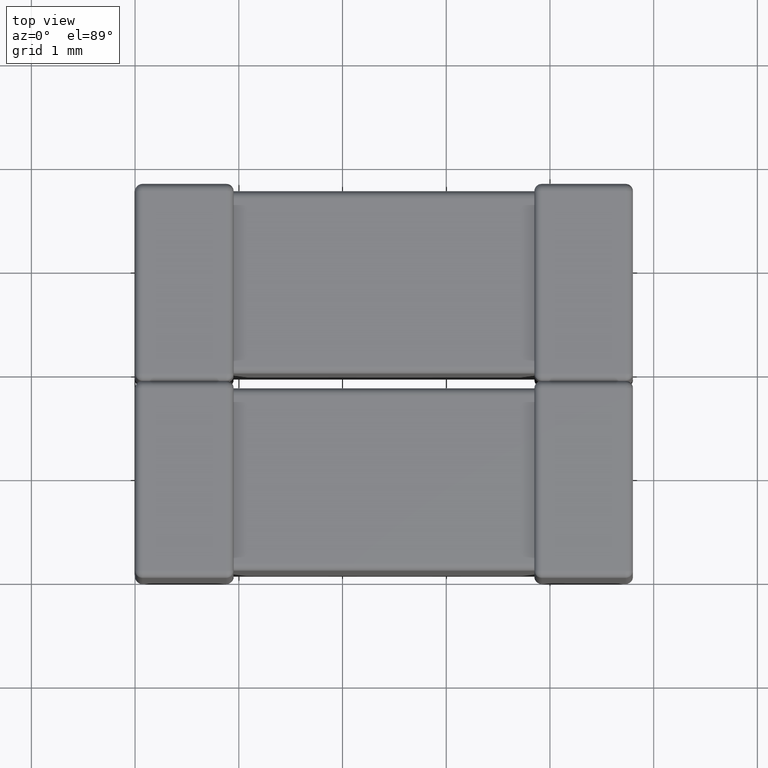
[diagram: clean part render]
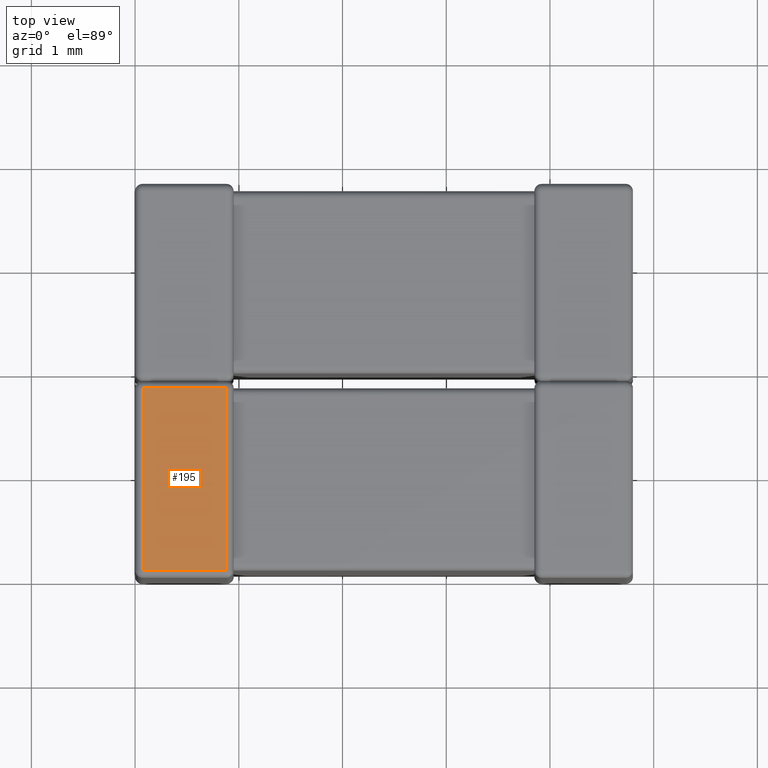
[diagram: same view with one face highlighted and labeled with its STEP entity id]
A machine part, top view. The second image highlights one B-rep face of the part: STEP entity #195.
In plain terms, the highlighted planar face has unit normal (0, 0, -1).
Its self-contained STEP definition (entity closure, byte-faithful):
#195 = ADVANCED_FACE ( 'NONE', ( #1410 ), #890, .F. ) ;
#890 = PLANE ( 'NONE',  #5199 ) ;
#896 = VECTOR ( 'NONE', #6901, 1000.000000000000000 ) ;
#1106 = CARTESIAN_POINT ( 'NONE',  ( 4.799999999999999822, 0.000000000000000000, 0.000000000000000000 ) ) ;
#1254 = LINE ( 'NONE', #3039, #4249 ) ;
#1410 = FACE_OUTER_BOUND ( 'NONE', #6451, .T. ) ;
#1459 = ORIENTED_EDGE ( 'NONE', *, *, #2003, .T. ) ;
#1700 = DIRECTION ( 'NONE',  ( -1.000000000000000000, 0.000000000000000000, -0.000000000000000000 ) ) ;
#1882 = VERTEX_POINT ( 'NONE', #4545 ) ;
#2003 = EDGE_CURVE ( 'NONE', #7248, #3752, #3631, .T. ) ;
#2264 = CARTESIAN_POINT ( 'NONE',  ( 0.06999999999999975686, 1.830000000000000071, 0.000000000000000000 ) ) ;
#2844 = CARTESIAN_POINT ( 'NONE',  ( 0.06999999999999975686, 0.000000000000000000, 0.000000000000000000 ) ) ;
#2876 = CARTESIAN_POINT ( 'NONE',  ( 0.8800000000000023359, -6.071532165918824830E-15, 0.000000000000000000 ) ) ;
#3039 = CARTESIAN_POINT ( 'NONE',  ( 4.799999999999999822, 1.830000000000000071, 0.000000000000000000 ) ) ;
#3212 = EDGE_CURVE ( 'NONE', #4924, #1882, #4080, .T. ) ;
#3631 = LINE ( 'NONE', #2876, #896 ) ;
#3681 = ORIENTED_EDGE ( 'NONE', *, *, #5774, .T. ) ;
#3752 = VERTEX_POINT ( 'NONE', #4664 ) ;
#4080 = LINE ( 'NONE', #2844, #6897 ) ;
#4249 = VECTOR ( 'NONE', #4761, 1000.000000000000000 ) ;
#4463 = VECTOR ( 'NONE', #4484, 1000.000000000000000 ) ;
#4484 = DIRECTION ( 'NONE',  ( 1.000000000000000000, -0.000000000000000000, -0.000000000000000000 ) ) ;
#4545 = CARTESIAN_POINT ( 'NONE',  ( 0.06999999999999975686, 0.07000000000000000666, 0.000000000000000000 ) ) ;
#4664 = CARTESIAN_POINT ( 'NONE',  ( 0.8800000000000000044, 1.830000000000000071, 0.000000000000000000 ) ) ;
#4761 = DIRECTION ( 'NONE',  ( -1.000000000000000000, 0.000000000000000000, 0.000000000000000000 ) ) ;
#4924 = VERTEX_POINT ( 'NONE', #2264 ) ;
#5079 = ORIENTED_EDGE ( 'NONE', *, *, #6279, .T. ) ;
#5199 = AXIS2_PLACEMENT_3D ( 'NONE', #1106, #6130, #1700 ) ;
#5511 = LINE ( 'NONE', #6063, #4463 ) ;
#5774 = EDGE_CURVE ( 'NONE', #3752, #4924, #1254, .T. ) ;
#6063 = CARTESIAN_POINT ( 'NONE',  ( 4.799999999999999822, 0.07000000000000000666, 0.000000000000000000 ) ) ;
#6130 = DIRECTION ( 'NONE',  ( 0.000000000000000000, 0.000000000000000000, -1.000000000000000000 ) ) ;
#6279 = EDGE_CURVE ( 'NONE', #1882, #7248, #5511, .T. ) ;
#6316 = ORIENTED_EDGE ( 'NONE', *, *, #3212, .T. ) ;
#6351 = CARTESIAN_POINT ( 'NONE',  ( 0.8800000000000027800, 0.07000000000000000666, 0.000000000000000000 ) ) ;
#6451 = EDGE_LOOP ( 'NONE', ( #6316, #5079, #1459, #3681 ) ) ;
#6829 = DIRECTION ( 'NONE',  ( 0.000000000000000000, -1.000000000000000000, 0.000000000000000000 ) ) ;
#6897 = VECTOR ( 'NONE', #6829, 1000.000000000000000 ) ;
#6901 = DIRECTION ( 'NONE',  ( -1.548860246407864520E-15, 1.000000000000000000, -0.000000000000000000 ) ) ;
#7248 = VERTEX_POINT ( 'NONE', #6351 ) ;